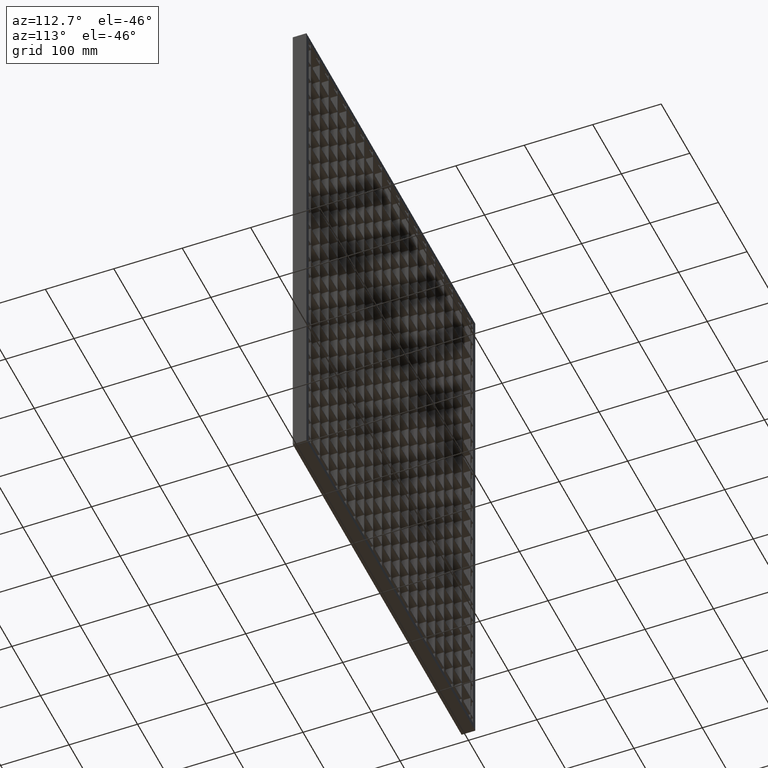
[diagram: clean part render]
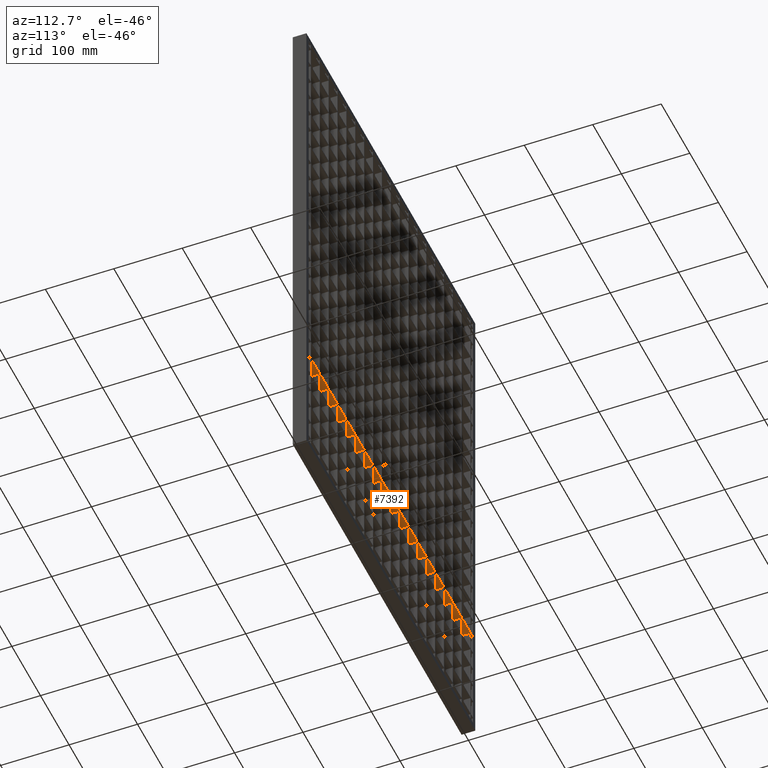
[diagram: same view with one face highlighted and labeled with its STEP entity id]
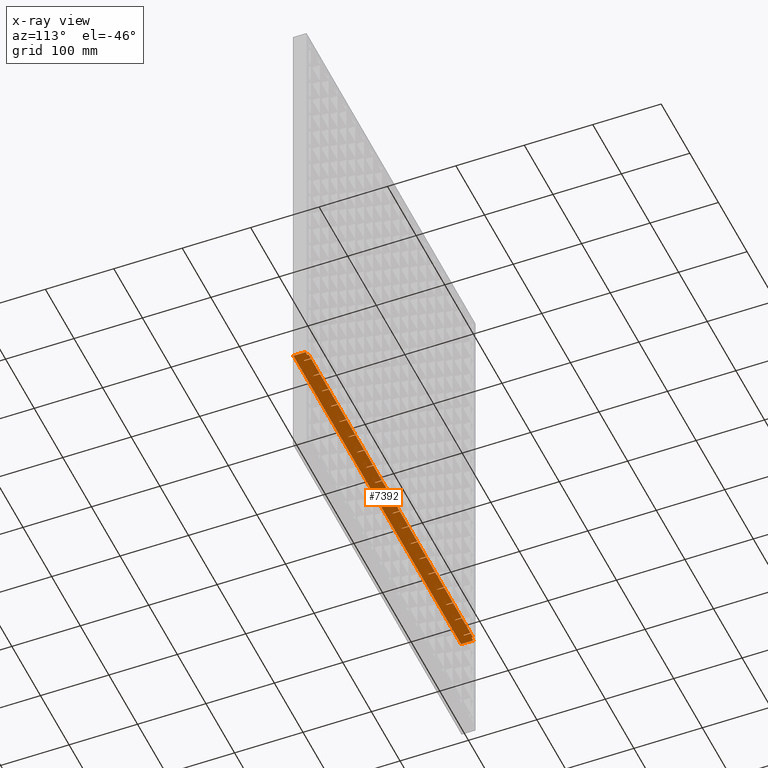
[diagram: x-ray of the same camera — body ghosted, the highlighted face saturated]
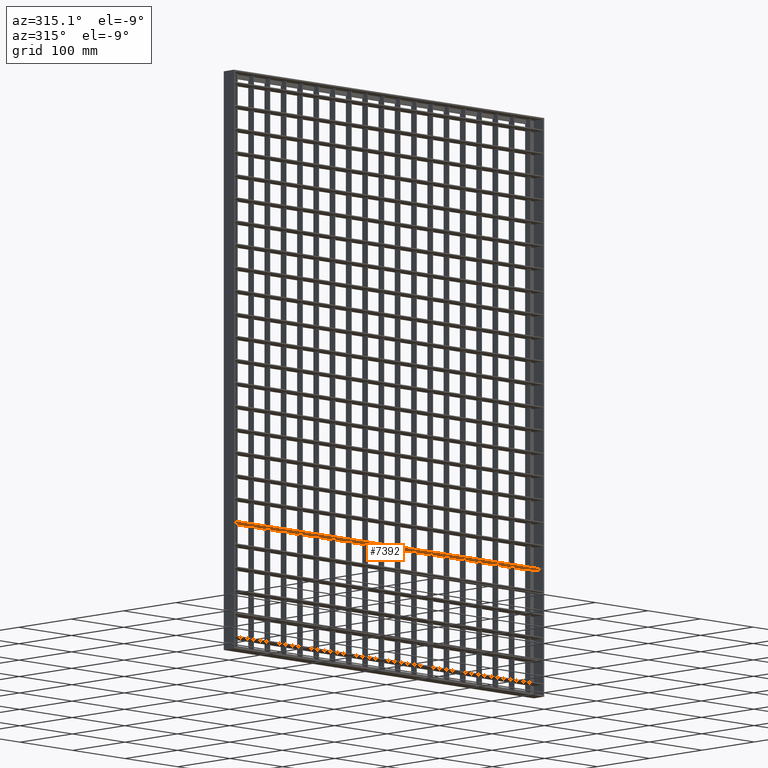
[diagram: same view with one face highlighted and labeled with its STEP entity id]
A machine part, auxiliary view. The second image highlights one B-rep face of the part: STEP entity #7392.
The next image is the same camera in x-ray: the body ghosted, the highlighted face saturated — about 0% of this face is hidden behind the body in this view.
A second angle (auxiliary view) of the same face is appended — the face is thin or edge-on in the first view.
In plain terms, the highlighted planar face has unit normal (0, 0, 1).
Its self-contained STEP definition (entity closure, byte-faithful):
#33 = CARTESIAN_POINT ( 'NONE',  ( 357.5000000000001100, 10.00000000000010800, -616.2499999999997700 ) ) ;
#61 = VECTOR ( 'NONE', #26564, 1000.000000000000000 ) ;
#147 = CARTESIAN_POINT ( 'NONE',  ( 449.5000000000000600, 1.734723475976807100E-015, -616.2499999999997700 ) ) ;
#302 = DIRECTION ( 'NONE',  ( -1.000000000000000000, 3.061616997868373300E-016, 0.0000000000000000000 ) ) ;
#349 = DIRECTION ( 'NONE',  ( -0.0000000000000000000, 1.000000000000000000, 0.0000000000000000000 ) ) ;
#484 = CARTESIAN_POINT ( 'NONE',  ( 608.0561711201313500, 10.00000000000018500, -616.2499999999997700 ) ) ;
#715 = LINE ( 'NONE', #11722, #40640 ) ;
#951 = EDGE_CURVE ( 'NONE', #69840, #65447, #59658, .T. ) ;
#1225 = DIRECTION ( 'NONE',  ( -1.000000000000000000, -3.061616997868382600E-016, 0.0000000000000000000 ) ) ;
#1245 = ORIENTED_EDGE ( 'NONE', *, *, #36718, .F. ) ;
#1247 = VECTOR ( 'NONE', #67531, 1000.000000000000000 ) ;
#1252 = ORIENTED_EDGE ( 'NONE', *, *, #54693, .T. ) ;
#1394 = CARTESIAN_POINT ( 'NONE',  ( 264.5000000000000600, -9.999999999999817000, -616.2499999999997700 ) ) ;
#1697 = EDGE_CURVE ( 'NONE', #32250, #66295, #41337, .T. ) ;
#1750 = ORIENTED_EDGE ( 'NONE', *, *, #2975, .F. ) ;
#1927 = CARTESIAN_POINT ( 'NONE',  ( 2.000000000000003600, -10.00000000000000000, -616.2499999999997700 ) ) ;
#2043 = LINE ( 'NONE', #67886, #39389 ) ;
#2047 = ORIENTED_EDGE ( 'NONE', *, *, #36748, .T. ) ;
#2148 = ORIENTED_EDGE ( 'NONE', *, *, #32944, .T. ) ;
#2220 = DIRECTION ( 'NONE',  ( 0.0000000000000000000, -1.000000000000000000, 0.0000000000000000000 ) ) ;
#2386 = DIRECTION ( 'NONE',  ( 0.0000000000000000000, -1.000000000000000000, 0.0000000000000000000 ) ) ;
#2623 = LINE ( 'NONE', #61043, #21786 ) ;
#2657 = LINE ( 'NONE', #38487, #33907 ) ;
#2776 = CARTESIAN_POINT ( 'NONE',  ( 512.5000000000000000, 1.500064159632394600E-015, -616.2499999999997700 ) ) ;
#2926 = VERTEX_POINT ( 'NONE', #34965 ) ;
#2975 = EDGE_CURVE ( 'NONE', #17500, #37077, #37606, .T. ) ;
#3007 = DIRECTION ( 'NONE',  ( -1.000000000000000000, -3.061616997868382600E-016, 0.0000000000000000000 ) ) ;
#3042 = AXIS2_PLACEMENT_3D ( 'NONE', #68817, #63729, #69800 ) ;
#3181 = ORIENTED_EDGE ( 'NONE', *, *, #39337, .T. ) ;
#3364 = DIRECTION ( 'NONE',  ( -0.0000000000000000000, 1.000000000000000000, 0.0000000000000000000 ) ) ;
#3549 = ORIENTED_EDGE ( 'NONE', *, *, #12016, .T. ) ;
#3605 = EDGE_CURVE ( 'NONE', #10358, #12796, #61807, .T. ) ;
#3643 = VERTEX_POINT ( 'NONE', #37120 ) ;
#3746 = DIRECTION ( 'NONE',  ( 0.0000000000000000000, -1.000000000000000000, 0.0000000000000000000 ) ) ;
#3793 = VERTEX_POINT ( 'NONE', #10458 ) ;
#4035 = LINE ( 'NONE', #15080, #5786 ) ;
#4244 = CARTESIAN_POINT ( 'NONE',  ( 588.0000000000001100, 8.000000000000001800, -616.2499999999997700 ) ) ;
#4441 = LINE ( 'NONE', #15582, #40949 ) ;
#4443 = LINE ( 'NONE', #67857, #22678 ) ;
#4629 = VECTOR ( 'NONE', #18399, 1000.000000000000000 ) ;
#4822 = CARTESIAN_POINT ( 'NONE',  ( 449.5000000000000600, 10.00000000000000200, -616.2499999999997700 ) ) ;
#4839 = VECTOR ( 'NONE', #14695, 1000.000000000000000 ) ;
#4855 = VERTEX_POINT ( 'NONE', #50580 ) ;
#5197 = EDGE_CURVE ( 'NONE', #54231, #19770, #63628, .T. ) ;
#5210 = ORIENTED_EDGE ( 'NONE', *, *, #12398, .F. ) ;
#5303 = LINE ( 'NONE', #10116, #61 ) ;
#5308 = ORIENTED_EDGE ( 'NONE', *, *, #35097, .T. ) ;
#5380 = ORIENTED_EDGE ( 'NONE', *, *, #3605, .T. ) ;
#5598 = VECTOR ( 'NONE', #18287, 1000.000000000000000 ) ;
#5786 = VECTOR ( 'NONE', #53833, 1000.000000000000000 ) ;
#5908 = CARTESIAN_POINT ( 'NONE',  ( 608.0561711201313500, -3.816391647148975600E-014, -616.2499999999997700 ) ) ;
#6029 = DIRECTION ( 'NONE',  ( -1.000000000000000000, -3.061616997868382600E-016, 0.0000000000000000000 ) ) ;
#6049 = VERTEX_POINT ( 'NONE', #40900 ) ;
#6370 = DIRECTION ( 'NONE',  ( -1.000000000000000000, -3.061616997868382600E-016, 0.0000000000000000000 ) ) ;
#6485 = LINE ( 'NONE', #69742, #14372 ) ;
#6623 = EDGE_CURVE ( 'NONE', #24511, #29935, #56868, .T. ) ;
#6627 = CARTESIAN_POINT ( 'NONE',  ( 608.0561711201313500, 10.00000000000018500, -616.2499999999997700 ) ) ;
#6719 = VECTOR ( 'NONE', #63049, 1000.000000000000000 ) ;
#6943 = EDGE_CURVE ( 'NONE', #6049, #63753, #43803, .T. ) ;
#7008 = CARTESIAN_POINT ( 'NONE',  ( 2.000000000000003600, 8.000000000000001800, -616.2499999999997700 ) ) ;
#7056 = EDGE_CURVE ( 'NONE', #61151, #26495, #61093, .T. ) ;
#7074 = CARTESIAN_POINT ( 'NONE',  ( 170.5000000000000300, 10.00000000000005000, -616.2499999999997700 ) ) ;
#7215 = ORIENTED_EDGE ( 'NONE', *, *, #6943, .F. ) ;
#7244 = VECTOR ( 'NONE', #56042, 1000.000000000000000 ) ;
#7392 = ADVANCED_FACE ( 'NONE', ( #16804 ), #30066, .F. ) ;
#7678 = EDGE_CURVE ( 'NONE', #46936, #37414, #9768, .T. ) ;
#8115 = CARTESIAN_POINT ( 'NONE',  ( 233.5000000000000300, 1.718540578710336300E-015, -616.2499999999997700 ) ) ;
#8291 = CARTESIAN_POINT ( 'NONE',  ( 140.5000000000000300, 10.00000000000000200, -616.2499999999997700 ) ) ;
#8310 = CARTESIAN_POINT ( 'NONE',  ( 608.0561711201313500, 10.00000000000018500, -616.2499999999997700 ) ) ;
#8327 = LINE ( 'NONE', #37732, #17041 ) ;
#8391 = EDGE_CURVE ( 'NONE', #16841, #40871, #4443, .T. ) ;
#8617 = DIRECTION ( 'NONE',  ( 0.0000000000000000000, -1.000000000000000000, 0.0000000000000000000 ) ) ;
#8745 = CARTESIAN_POINT ( 'NONE',  ( 46.50000000000004300, 1.412378878923498800E-015, -616.2499999999997700 ) ) ;
#8877 = CARTESIAN_POINT ( 'NONE',  ( 77.50000000000004300, 1.412378878923498800E-015, -616.2499999999997700 ) ) ;
#9363 = LINE ( 'NONE', #48176, #17173 ) ;
#9388 = LINE ( 'NONE', #1927, #63151 ) ;
#9428 = EDGE_CURVE ( 'NONE', #17520, #52066, #22553, .T. ) ;
#9537 = DIRECTION ( 'NONE',  ( -0.0000000000000000000, 1.000000000000000000, 0.0000000000000000000 ) ) ;
#9688 = VECTOR ( 'NONE', #25835, 1000.000000000000000 ) ;
#9712 = ORIENTED_EDGE ( 'NONE', *, *, #67018, .T. ) ;
#9764 = CARTESIAN_POINT ( 'NONE',  ( 481.5000000000000000, -9.999999999999817000, -616.2499999999997700 ) ) ;
#9768 = LINE ( 'NONE', #56329, #68741 ) ;
#9939 = CARTESIAN_POINT ( 'NONE',  ( 542.5000000000000000, 1.734723475976807100E-015, -616.2499999999997700 ) ) ;
#10116 = CARTESIAN_POINT ( 'NONE',  ( 582.0000000000000000, 8.000000000000001800, -616.2499999999997700 ) ) ;
#10130 = CARTESIAN_POINT ( 'NONE',  ( 294.5000000000000600, -9.999999999999817000, -616.2499999999997700 ) ) ;
#10180 = VERTEX_POINT ( 'NONE', #40971 ) ;
#10199 = VECTOR ( 'NONE', #55611, 1000.000000000000000 ) ;
#10219 = DIRECTION ( 'NONE',  ( -1.000000000000000000, 3.061616997868373300E-016, 0.0000000000000000000 ) ) ;
#10236 = ORIENTED_EDGE ( 'NONE', *, *, #47803, .F. ) ;
#10358 = VERTEX_POINT ( 'NONE', #49786 ) ;
#10458 = CARTESIAN_POINT ( 'NONE',  ( 16.50000000000001400, 10.00000000000000200, -616.2499999999997700 ) ) ;
#10481 = EDGE_CURVE ( 'NONE', #31335, #3643, #65757, .T. ) ;
#10652 = CARTESIAN_POINT ( 'NONE',  ( 357.5000000000001100, 2.117593775218354600E-015, -616.2499999999997700 ) ) ;
#10661 = VERTEX_POINT ( 'NONE', #51740 ) ;
#10939 = VERTEX_POINT ( 'NONE', #11725 ) ;
#11051 = CARTESIAN_POINT ( 'NONE',  ( 419.5000000000000000, 2.217526624179349000E-015, -616.2499999999997700 ) ) ;
#11095 = CARTESIAN_POINT ( 'NONE',  ( 608.0561711201313500, 10.00000000000018500, -616.2499999999997700 ) ) ;
#11112 = EDGE_CURVE ( 'NONE', #24511, #55812, #25561, .T. ) ;
#11193 = VECTOR ( 'NONE', #19302, 1000.000000000000000 ) ;
#11302 = CARTESIAN_POINT ( 'NONE',  ( 543.5000000000001100, 10.00000000000016500, -616.2499999999997700 ) ) ;
#11351 = ORIENTED_EDGE ( 'NONE', *, *, #11742, .F. ) ;
#11513 = CARTESIAN_POINT ( 'NONE',  ( 295.0000000000000600, 8.000000000000001800, -616.2499999999997700 ) ) ;
#11722 = CARTESIAN_POINT ( 'NONE',  ( 608.0561711201313500, 10.00000000000018500, -616.2499999999997700 ) ) ;
#11725 = CARTESIAN_POINT ( 'NONE',  ( 511.5000000000000600, 10.00000000000000200, -616.2499999999997700 ) ) ;
#11742 = EDGE_CURVE ( 'NONE', #49481, #45977, #59298, .T. ) ;
#11835 = VERTEX_POINT ( 'NONE', #69303 ) ;
#11973 = LINE ( 'NONE', #24237, #6719 ) ;
#12007 = VERTEX_POINT ( 'NONE', #43131 ) ;
#12016 = EDGE_CURVE ( 'NONE', #13623, #38789, #47964, .T. ) ;
#12136 = ORIENTED_EDGE ( 'NONE', *, *, #70786, .F. ) ;
#12203 = CARTESIAN_POINT ( 'NONE',  ( 2.000000000000001800, -10.00000000000000200, -616.2499999999997700 ) ) ;
#12321 = VECTOR ( 'NONE', #38179, 1000.000000000000000 ) ;
#12398 = EDGE_CURVE ( 'NONE', #58415, #32125, #69605, .T. ) ;
#12425 = LINE ( 'NONE', #6627, #50565 ) ;
#12708 = CARTESIAN_POINT ( 'NONE',  ( 139.5000000000000600, -9.999999999999817000, -616.2499999999997700 ) ) ;
#12796 = VERTEX_POINT ( 'NONE', #17007 ) ;
#12930 = CARTESIAN_POINT ( 'NONE',  ( 608.0561711201313500, 10.00000000000018500, -616.2499999999997700 ) ) ;
#12988 = CARTESIAN_POINT ( 'NONE',  ( 46.50000000000009900, 10.00000000000001200, -616.2499999999997700 ) ) ;
#13207 = VECTOR ( 'NONE', #20745, 1000.000000000000000 ) ;
#13210 = CARTESIAN_POINT ( 'NONE',  ( 450.5000000000000600, 10.00000000000013500, -616.2499999999997700 ) ) ;
#13233 = CARTESIAN_POINT ( 'NONE',  ( 47.50000000000004300, 10.00000000000000200, -616.2499999999997700 ) ) ;
#13518 = DIRECTION ( 'NONE',  ( -0.0000000000000000000, 1.000000000000000000, 0.0000000000000000000 ) ) ;
#13571 = LINE ( 'NONE', #58231, #53470 ) ;
#13623 = VERTEX_POINT ( 'NONE', #46071 ) ;
#13699 = VECTOR ( 'NONE', #2386, 1000.000000000000000 ) ;
#13924 = VERTEX_POINT ( 'NONE', #47968 ) ;
#13991 = ORIENTED_EDGE ( 'NONE', *, *, #27981, .F. ) ;
#14258 = CARTESIAN_POINT ( 'NONE',  ( 47.50000000000004300, 1.718540578710336300E-015, -616.2499999999997700 ) ) ;
#14328 = LINE ( 'NONE', #28960, #5598 ) ;
#14372 = VECTOR ( 'NONE', #52266, 1000.000000000000000 ) ;
#14605 = VECTOR ( 'NONE', #63071, 1000.000000000000000 ) ;
#14638 = VECTOR ( 'NONE', #51977, 1000.000000000000000 ) ;
#14695 = DIRECTION ( 'NONE',  ( 0.0000000000000000000, -1.000000000000000000, 0.0000000000000000000 ) ) ;
#14715 = VERTEX_POINT ( 'NONE', #12988 ) ;
#14931 = CARTESIAN_POINT ( 'NONE',  ( 588.0000000000000000, -9.999999999999817000, -616.2499999999997700 ) ) ;
#14975 = DIRECTION ( 'NONE',  ( -0.0000000000000000000, 1.000000000000000000, 0.0000000000000000000 ) ) ;
#15080 = CARTESIAN_POINT ( 'NONE',  ( 608.0561711201313500, 10.00000000000018500, -616.2499999999997700 ) ) ;
#15184 = CARTESIAN_POINT ( 'NONE',  ( 608.0561711201313500, 1.457167719820518000E-013, -616.2499999999997700 ) ) ;
#15187 = DIRECTION ( 'NONE',  ( -0.0000000000000000000, 1.000000000000000000, 0.0000000000000000000 ) ) ;
#15267 = VECTOR ( 'NONE', #3364, 1000.000000000000000 ) ;
#15439 = EDGE_CURVE ( 'NONE', #65447, #36996, #40564, .T. ) ;
#15455 = EDGE_CURVE ( 'NONE', #56479, #34657, #11973, .T. ) ;
#15477 = DIRECTION ( 'NONE',  ( 1.000000000000000000, 3.061616997868373300E-016, -0.0000000000000000000 ) ) ;
#15528 = CARTESIAN_POINT ( 'NONE',  ( 357.5000000000001100, -9.999999999999817000, -616.2499999999997700 ) ) ;
#15582 = CARTESIAN_POINT ( 'NONE',  ( 608.0561711201313500, 1.630640067418198700E-013, -616.2499999999997700 ) ) ;
#15614 = DIRECTION ( 'NONE',  ( 0.0000000000000000000, -1.000000000000000000, 0.0000000000000000000 ) ) ;
#15862 = EDGE_CURVE ( 'NONE', #47526, #32250, #13571, .T. ) ;
#15958 = ORIENTED_EDGE ( 'NONE', *, *, #62601, .F. ) ;
#16107 = ORIENTED_EDGE ( 'NONE', *, *, #42738, .F. ) ;
#16376 = LINE ( 'NONE', #49480, #58011 ) ;
#16504 = EDGE_CURVE ( 'NONE', #12007, #13924, #37037, .T. ) ;
#16541 = ORIENTED_EDGE ( 'NONE', *, *, #68631, .T. ) ;
#16576 = VECTOR ( 'NONE', #34663, 1000.000000000000000 ) ;
#16699 = ORIENTED_EDGE ( 'NONE', *, *, #47340, .F. ) ;
#16774 = ORIENTED_EDGE ( 'NONE', *, *, #59145, .F. ) ;
#16804 = FACE_OUTER_BOUND ( 'NONE', #67920, .T. ) ;
#16822 = VERTEX_POINT ( 'NONE', #32916 ) ;
#16837 = ORIENTED_EDGE ( 'NONE', *, *, #15439, .F. ) ;
#16841 = VERTEX_POINT ( 'NONE', #66132 ) ;
#16884 = VECTOR ( 'NONE', #49005, 1000.000000000000000 ) ;
#17007 = CARTESIAN_POINT ( 'NONE',  ( 109.5000000000000400, 1.718540578710336300E-015, -616.2499999999997700 ) ) ;
#17041 = VECTOR ( 'NONE', #54669, 1000.000000000000000 ) ;
#17173 = VECTOR ( 'NONE', #48884, 1000.000000000000000 ) ;
#17194 = CARTESIAN_POINT ( 'NONE',  ( 294.5000000000000600, 1.412378878923498800E-015, -616.2499999999997700 ) ) ;
#17242 = LINE ( 'NONE', #10130, #11193 ) ;
#17500 = VERTEX_POINT ( 'NONE', #20699 ) ;
#17520 = VERTEX_POINT ( 'NONE', #11051 ) ;
#17535 = LINE ( 'NONE', #14931, #12321 ) ;
#17597 = DIRECTION ( 'NONE',  ( -1.000000000000000000, -3.061616997868382600E-016, 0.0000000000000000000 ) ) ;
#17603 = VECTOR ( 'NONE', #37146, 1000.000000000000000 ) ;
#17952 = EDGE_CURVE ( 'NONE', #36102, #27076, #49047, .T. ) ;
#18287 = DIRECTION ( 'NONE',  ( -0.0000000000000000000, 1.000000000000000000, 0.0000000000000000000 ) ) ;
#18290 = CARTESIAN_POINT ( 'NONE',  ( 608.0561711201313500, 10.00000000000018500, -616.2499999999997700 ) ) ;
#18399 = DIRECTION ( 'NONE',  ( -0.0000000000000000000, 1.000000000000000000, 0.0000000000000000000 ) ) ;
#18631 = VERTEX_POINT ( 'NONE', #37309 ) ;
#18764 = CARTESIAN_POINT ( 'NONE',  ( 326.5000000000000600, 10.00000000000009800, -616.2499999999997700 ) ) ;
#18805 = CARTESIAN_POINT ( 'NONE',  ( 325.5000000000000600, 10.00000000000000200, -616.2499999999997700 ) ) ;
#18827 = EDGE_CURVE ( 'NONE', #31718, #61705, #51452, .T. ) ;
#19027 = EDGE_CURVE ( 'NONE', #68417, #20552, #63574, .T. ) ;
#19166 = EDGE_CURVE ( 'NONE', #59104, #52917, #43603, .T. ) ;
#19197 = ORIENTED_EDGE ( 'NONE', *, *, #64051, .T. ) ;
#19302 = DIRECTION ( 'NONE',  ( 0.0000000000000000000, -1.000000000000000000, 0.0000000000000000000 ) ) ;
#19351 = EDGE_CURVE ( 'NONE', #46911, #36102, #45351, .T. ) ;
#19770 = VERTEX_POINT ( 'NONE', #8291 ) ;
#19911 = DIRECTION ( 'NONE',  ( 1.000000000000000000, 3.061616997868373300E-016, -0.0000000000000000000 ) ) ;
#20042 = CARTESIAN_POINT ( 'NONE',  ( 295.5000000000000600, -9.999999999999817000, -616.2499999999997700 ) ) ;
#20207 = ORIENTED_EDGE ( 'NONE', *, *, #7056, .F. ) ;
#20269 = CARTESIAN_POINT ( 'NONE',  ( 418.5000000000000600, 1.734723475976807100E-015, -616.2499999999997700 ) ) ;
#20377 = CARTESIAN_POINT ( 'NONE',  ( 608.0561711201313500, 1.543903893619358300E-013, -616.2499999999997700 ) ) ;
#20389 = VECTOR ( 'NONE', #17597, 1000.000000000000000 ) ;
#20410 = CARTESIAN_POINT ( 'NONE',  ( 608.0561711201313500, 10.00000000000018500, -616.2499999999997700 ) ) ;
#20552 = VERTEX_POINT ( 'NONE', #32865 ) ;
#20582 = VECTOR ( 'NONE', #15614, 1000.000000000000000 ) ;
#20699 = CARTESIAN_POINT ( 'NONE',  ( 481.5000000000000000, 10.00000000000014600, -616.2499999999997700 ) ) ;
#20745 = DIRECTION ( 'NONE',  ( -0.0000000000000000000, 1.000000000000000000, 0.0000000000000000000 ) ) ;
#20969 = CARTESIAN_POINT ( 'NONE',  ( 480.5000000000000000, 10.00000000000000200, -616.2499999999997700 ) ) ;
#21181 = LINE ( 'NONE', #67652, #7244 ) ;
#21250 = VERTEX_POINT ( 'NONE', #49983 ) ;
#21518 = ORIENTED_EDGE ( 'NONE', *, *, #49256, .F. ) ;
#21672 = DIRECTION ( 'NONE',  ( -1.000000000000000000, 0.0000000000000000000, 0.0000000000000000000 ) ) ;
#21786 = VECTOR ( 'NONE', #65910, 1000.000000000000000 ) ;
#21927 = LINE ( 'NONE', #20042, #29740 ) ;
#22159 = ORIENTED_EDGE ( 'NONE', *, *, #39908, .F. ) ;
#22197 = DIRECTION ( 'NONE',  ( -0.0000000000000000000, 1.000000000000000000, 0.0000000000000000000 ) ) ;
#22311 = ORIENTED_EDGE ( 'NONE', *, *, #29781, .T. ) ;
#22423 = CARTESIAN_POINT ( 'NONE',  ( 608.0561711201313500, 10.00000000000018500, -616.2499999999997700 ) ) ;
#22534 = CARTESIAN_POINT ( 'NONE',  ( 264.5000000000000600, 1.718540578710336300E-015, -616.2499999999997700 ) ) ;
#22553 = LINE ( 'NONE', #60938, #65983 ) ;
#22554 = CARTESIAN_POINT ( 'NONE',  ( 232.5000000000000300, -9.999999999999817000, -616.2499999999997700 ) ) ;
#22678 = VECTOR ( 'NONE', #28847, 1000.000000000000000 ) ;
#22719 = VECTOR ( 'NONE', #349, 1000.000000000000000 ) ;
#22837 = VECTOR ( 'NONE', #8617, 1000.000000000000000 ) ;
#22868 = CARTESIAN_POINT ( 'NONE',  ( 608.0561711201313500, -2.775557561562891400E-014, -616.2499999999997700 ) ) ;
#22943 = LINE ( 'NONE', #38339, #61971 ) ;
#23008 = VERTEX_POINT ( 'NONE', #18805 ) ;
#23037 = VERTEX_POINT ( 'NONE', #13233 ) ;
#23248 = ORIENTED_EDGE ( 'NONE', *, *, #27640, .F. ) ;
#23278 = ORIENTED_EDGE ( 'NONE', *, *, #19351, .T. ) ;
#23295 = EDGE_CURVE ( 'NONE', #18631, #47995, #45025, .T. ) ;
#23328 = DIRECTION ( 'NONE',  ( 0.0000000000000000000, -1.000000000000000000, 0.0000000000000000000 ) ) ;
#23403 = VECTOR ( 'NONE', #9537, 1000.000000000000000 ) ;
#23436 = LINE ( 'NONE', #57382, #51189 ) ;
#23442 = EDGE_CURVE ( 'NONE', #10939, #17500, #24113, .T. ) ;
#23532 = EDGE_CURVE ( 'NONE', #58084, #37414, #9388, .T. ) ;
#23943 = LINE ( 'NONE', #43677, #39635 ) ;
#24113 = LINE ( 'NONE', #67677, #14605 ) ;
#24146 = CARTESIAN_POINT ( 'NONE',  ( 232.4999999999999700, 10.00000000000006900, -616.2499999999997700 ) ) ;
#24237 = CARTESIAN_POINT ( 'NONE',  ( 608.0561711201313500, 1.353084311261909500E-013, -616.2499999999997700 ) ) ;
#24369 = CARTESIAN_POINT ( 'NONE',  ( 232.5000000000000300, 1.412378878923498800E-015, -616.2499999999997700 ) ) ;
#24511 = VERTEX_POINT ( 'NONE', #61377 ) ;
#24638 = CARTESIAN_POINT ( 'NONE',  ( 7.999999999999996400, 8.000000000000001800, -616.2499999999997700 ) ) ;
#25240 = VERTEX_POINT ( 'NONE', #2776 ) ;
#25255 = LINE ( 'NONE', #50926, #16576 ) ;
#25335 = VECTOR ( 'NONE', #34864, 1000.000000000000000 ) ;
#25363 = CARTESIAN_POINT ( 'NONE',  ( 356.5000000000001100, 1.734723475976807100E-015, -616.2499999999997700 ) ) ;
#25561 = LINE ( 'NONE', #12708, #39507 ) ;
#25772 = CARTESIAN_POINT ( 'NONE',  ( 387.5000000000000000, -9.999999999999817000, -616.2499999999997700 ) ) ;
#25801 = CARTESIAN_POINT ( 'NONE',  ( 543.5000000000001100, -9.999999999999817000, -616.2499999999997700 ) ) ;
#25835 = DIRECTION ( 'NONE',  ( 1.000000000000000000, 3.061616997868373300E-016, -0.0000000000000000000 ) ) ;
#26079 = EDGE_CURVE ( 'NONE', #58384, #34248, #56669, .T. ) ;
#26256 = VECTOR ( 'NONE', #3007, 1000.000000000000000 ) ;
#26495 = VERTEX_POINT ( 'NONE', #37249 ) ;
#26526 = EDGE_CURVE ( 'NONE', #64199, #68603, #21927, .T. ) ;
#26564 = DIRECTION ( 'NONE',  ( 0.0000000000000000000, 1.000000000000000000, -0.0000000000000000000 ) ) ;
#26637 = EDGE_CURVE ( 'NONE', #66295, #23008, #64373, .T. ) ;
#27018 = ORIENTED_EDGE ( 'NONE', *, *, #58871, .T. ) ;
#27049 = DIRECTION ( 'NONE',  ( -1.000000000000000000, -3.061616997868382600E-016, 0.0000000000000000000 ) ) ;
#27076 = VERTEX_POINT ( 'NONE', #8115 ) ;
#27264 = LINE ( 'NONE', #38100, #47229 ) ;
#27367 = VECTOR ( 'NONE', #50771, 1000.000000000000000 ) ;
#27640 = EDGE_CURVE ( 'NONE', #14715, #3793, #715, .T. ) ;
#27703 = VECTOR ( 'NONE', #71105, 1000.000000000000000 ) ;
#27721 = EDGE_CURVE ( 'NONE', #46911, #4855, #68963, .T. ) ;
#27981 = EDGE_CURVE ( 'NONE', #45977, #32565, #34239, .T. ) ;
#28414 = VECTOR ( 'NONE', #44243, 1000.000000000000000 ) ;
#28847 = DIRECTION ( 'NONE',  ( -1.000000000000000000, 3.061616997868373300E-016, 0.0000000000000000000 ) ) ;
#28854 = VECTOR ( 'NONE', #62534, 1000.000000000000000 ) ;
#28960 = CARTESIAN_POINT ( 'NONE',  ( 449.5000000000000600, -9.999999999999817000, -616.2499999999997700 ) ) ;
#29050 = VERTEX_POINT ( 'NONE', #63565 ) ;
#29326 = VECTOR ( 'NONE', #66269, 1000.000000000000000 ) ;
#29740 = VECTOR ( 'NONE', #14975, 1000.000000000000000 ) ;
#29781 = EDGE_CURVE ( 'NONE', #27076, #61705, #2657, .T. ) ;
#29935 = VERTEX_POINT ( 'NONE', #71962 ) ;
#29960 = LINE ( 'NONE', #50529, #20389 ) ;
#30034 = LINE ( 'NONE', #48375, #44793 ) ;
#30066 = PLANE ( 'NONE',  #3042 ) ;
#30088 = CARTESIAN_POINT ( 'NONE',  ( 450.5000000000000600, -9.999999999999817000, -616.2499999999997700 ) ) ;
#30688 = CARTESIAN_POINT ( 'NONE',  ( 608.0561711201313500, 10.00000000000018500, -616.2499999999997700 ) ) ;
#30821 = DIRECTION ( 'NONE',  ( 0.0000000000000000000, -1.000000000000000000, 0.0000000000000000000 ) ) ;
#30874 = CARTESIAN_POINT ( 'NONE',  ( 608.0561711201313500, 10.00000000000018500, -616.2499999999997700 ) ) ;
#31335 = VERTEX_POINT ( 'NONE', #37433 ) ;
#31718 = VERTEX_POINT ( 'NONE', #46384 ) ;
#31951 = VECTOR ( 'NONE', #3746, 1000.000000000000000 ) ;
#32125 = VERTEX_POINT ( 'NONE', #45131 ) ;
#32250 = VERTEX_POINT ( 'NONE', #51137 ) ;
#32430 = EDGE_CURVE ( 'NONE', #16822, #10939, #58584, .T. ) ;
#32450 = VERTEX_POINT ( 'NONE', #48231 ) ;
#32557 = VECTOR ( 'NONE', #35316, 1000.000000000000000 ) ;
#32565 = VERTEX_POINT ( 'NONE', #10652 ) ;
#32644 = VERTEX_POINT ( 'NONE', #9939 ) ;
#32686 = ORIENTED_EDGE ( 'NONE', *, *, #60756, .F. ) ;
#32865 = CARTESIAN_POINT ( 'NONE',  ( 7.999999999999996400, 8.000000000000001800, -616.2499999999997700 ) ) ;
#32916 = CARTESIAN_POINT ( 'NONE',  ( 511.5000000000000600, 1.734723475976807100E-015, -616.2499999999997700 ) ) ;
#32944 = EDGE_CURVE ( 'NONE', #12796, #29935, #6485, .T. ) ;
#33020 = DIRECTION ( 'NONE',  ( 1.000000000000000000, 3.061616997868373300E-016, -0.0000000000000000000 ) ) ;
#33193 = ORIENTED_EDGE ( 'NONE', *, *, #60995, .F. ) ;
#33293 = ORIENTED_EDGE ( 'NONE', *, *, #17952, .T. ) ;
#33377 = DIRECTION ( 'NONE',  ( 1.000000000000000000, 3.061616997868373300E-016, -0.0000000000000000000 ) ) ;
#33907 = VECTOR ( 'NONE', #54968, 1000.000000000000000 ) ;
#33998 = CARTESIAN_POINT ( 'NONE',  ( 608.0561711201313500, 10.00000000000018500, -616.2499999999997700 ) ) ;
#34239 = LINE ( 'NONE', #15528, #47247 ) ;
#34248 = VERTEX_POINT ( 'NONE', #36263 ) ;
#34530 = VECTOR ( 'NONE', #22197, 1000.000000000000000 ) ;
#34657 = VERTEX_POINT ( 'NONE', #50358 ) ;
#34663 = DIRECTION ( 'NONE',  ( 0.0000000000000000000, -1.000000000000000000, 0.0000000000000000000 ) ) ;
#34664 = DIRECTION ( 'NONE',  ( -0.0000000000000000000, 1.000000000000000000, 0.0000000000000000000 ) ) ;
#34864 = DIRECTION ( 'NONE',  ( -1.000000000000000000, 0.0000000000000000000, 0.0000000000000000000 ) ) ;
#34914 = VECTOR ( 'NONE', #49737, 1000.000000000000000 ) ;
#34917 = ORIENTED_EDGE ( 'NONE', *, *, #47411, .F. ) ;
#34965 = CARTESIAN_POINT ( 'NONE',  ( 15.50000000000001400, 1.412378878923498800E-015, -616.2499999999997700 ) ) ;
#34992 = VERTEX_POINT ( 'NONE', #57857 ) ;
#35030 = VECTOR ( 'NONE', #54433, 1000.000000000000000 ) ;
#35074 = DIRECTION ( 'NONE',  ( -0.0000000000000000000, -1.000000000000000000, 0.0000000000000000000 ) ) ;
#35097 = EDGE_CURVE ( 'NONE', #55812, #29050, #39185, .T. ) ;
#35316 = DIRECTION ( 'NONE',  ( -1.000000000000000000, 3.061616997868373300E-016, 0.0000000000000000000 ) ) ;
#35389 = EDGE_CURVE ( 'NONE', #14715, #42206, #25255, .T. ) ;
#35737 = ORIENTED_EDGE ( 'NONE', *, *, #57032, .F. ) ;
#35871 = ORIENTED_EDGE ( 'NONE', *, *, #71905, .F. ) ;
#36069 = VECTOR ( 'NONE', #13518, 1000.000000000000000 ) ;
#36102 = VERTEX_POINT ( 'NONE', #24369 ) ;
#36262 = LINE ( 'NONE', #49603, #34530 ) ;
#36263 = CARTESIAN_POINT ( 'NONE',  ( 543.5000000000001100, 6.826688461244297300E-016, -616.2499999999997700 ) ) ;
#36402 = DIRECTION ( 'NONE',  ( -1.000000000000000000, -3.061616997868382600E-016, 0.0000000000000000000 ) ) ;
#36718 = EDGE_CURVE ( 'NONE', #40871, #49481, #48507, .T. ) ;
#36748 = EDGE_CURVE ( 'NONE', #34657, #52917, #71993, .T. ) ;
#36771 = LINE ( 'NONE', #59758, #35030 ) ;
#36902 = LINE ( 'NONE', #46706, #36069 ) ;
#36991 = ORIENTED_EDGE ( 'NONE', *, *, #19166, .F. ) ;
#36996 = VERTEX_POINT ( 'NONE', #50442 ) ;
#37037 = LINE ( 'NONE', #484, #67315 ) ;
#37077 = VERTEX_POINT ( 'NONE', #44923 ) ;
#37120 = CARTESIAN_POINT ( 'NONE',  ( 388.5000000000000000, 10.00000000000011700, -616.2499999999997700 ) ) ;
#37146 = DIRECTION ( 'NONE',  ( -1.000000000000000000, -3.061616997868382600E-016, 0.0000000000000000000 ) ) ;
#37249 = CARTESIAN_POINT ( 'NONE',  ( 356.5000000000001100, 10.00000000000000200, -616.2499999999997700 ) ) ;
#37309 = CARTESIAN_POINT ( 'NONE',  ( 263.5000000000000600, 1.412378878923498800E-015, -616.2499999999997700 ) ) ;
#37381 = CARTESIAN_POINT ( 'NONE',  ( 573.5000000000001100, 1.734723475976807100E-015, -616.2499999999997700 ) ) ;
#37414 = VERTEX_POINT ( 'NONE', #12203 ) ;
#37433 = CARTESIAN_POINT ( 'NONE',  ( 418.5000000000000600, 10.00000000000000200, -616.2499999999997700 ) ) ;
#37497 = CARTESIAN_POINT ( 'NONE',  ( 608.0561711201313500, 1.266348137463069200E-013, -616.2499999999997700 ) ) ;
#37606 = LINE ( 'NONE', #9764, #61059 ) ;
#37728 = ORIENTED_EDGE ( 'NONE', *, *, #5197, .F. ) ;
#37732 = CARTESIAN_POINT ( 'NONE',  ( 201.5000000000000000, -9.999999999999817000, -616.2499999999997700 ) ) ;
#37815 = CARTESIAN_POINT ( 'NONE',  ( 608.0561711201313500, 1.821459649775647400E-013, -616.2499999999997700 ) ) ;
#38100 = CARTESIAN_POINT ( 'NONE',  ( 108.5000000000000400, -9.999999999999817000, -616.2499999999997700 ) ) ;
#38105 = CARTESIAN_POINT ( 'NONE',  ( 171.5000000000000300, 10.00000000000000200, -616.2499999999997700 ) ) ;
#38179 = DIRECTION ( 'NONE',  ( 0.0000000000000000000, -1.000000000000000000, 0.0000000000000000000 ) ) ;
#38339 = CARTESIAN_POINT ( 'NONE',  ( 608.0561711201313500, -1.908195823574487800E-014, -616.2499999999997700 ) ) ;
#38341 = ORIENTED_EDGE ( 'NONE', *, *, #65015, .F. ) ;
#38414 = ORIENTED_EDGE ( 'NONE', *, *, #46699, .F. ) ;
#38487 = CARTESIAN_POINT ( 'NONE',  ( 233.5000000000000300, -9.999999999999817000, -616.2499999999997700 ) ) ;
#38593 = CARTESIAN_POINT ( 'NONE',  ( 170.5000000000000300, -9.999999999999817000, -616.2499999999997700 ) ) ;
#38622 = VECTOR ( 'NONE', #41313, 1000.000000000000000 ) ;
#38755 = LINE ( 'NONE', #41727, #44819 ) ;
#38789 = VERTEX_POINT ( 'NONE', #45003 ) ;
#38792 = CARTESIAN_POINT ( 'NONE',  ( 608.0561711201313500, 10.00000000000018500, -616.2499999999997700 ) ) ;
#38927 = LINE ( 'NONE', #60904, #20582 ) ;
#39059 = ORIENTED_EDGE ( 'NONE', *, *, #26079, .F. ) ;
#39185 = LINE ( 'NONE', #15184, #9688 ) ;
#39337 = EDGE_CURVE ( 'NONE', #54231, #56479, #64423, .T. ) ;
#39389 = VECTOR ( 'NONE', #34664, 1000.000000000000000 ) ;
#39472 = CARTESIAN_POINT ( 'NONE',  ( 608.0561711201313500, 1.734723475976807100E-013, -616.2499999999997700 ) ) ;
#39507 = VECTOR ( 'NONE', #23328, 1000.000000000000000 ) ;
#39635 = VECTOR ( 'NONE', #67407, 1000.000000000000000 ) ;
#39872 = DIRECTION ( 'NONE',  ( -1.000000000000000000, -3.061616997868382600E-016, 0.0000000000000000000 ) ) ;
#39908 = EDGE_CURVE ( 'NONE', #61249, #44879, #65141, .T. ) ;
#40564 = LINE ( 'NONE', #30088, #13699 ) ;
#40640 = VECTOR ( 'NONE', #1225, 1000.000000000000000 ) ;
#40786 = DIRECTION ( 'NONE',  ( -0.0000000000000000000, -1.000000000000000000, 0.0000000000000000000 ) ) ;
#40842 = CARTESIAN_POINT ( 'NONE',  ( 78.50000000000004300, 10.00000000000000200, -616.2499999999997700 ) ) ;
#40871 = VERTEX_POINT ( 'NONE', #50962 ) ;
#40900 = CARTESIAN_POINT ( 'NONE',  ( 108.4999999999999900, 10.00000000000003200, -616.2499999999997700 ) ) ;
#40949 = VECTOR ( 'NONE', #70620, 1000.000000000000000 ) ;
#40971 = CARTESIAN_POINT ( 'NONE',  ( 15.50000000000006900, 10.00000000000000200, -616.2499999999997700 ) ) ;
#41265 = ORIENTED_EDGE ( 'NONE', *, *, #32430, .F. ) ;
#41280 = ORIENTED_EDGE ( 'NONE', *, *, #23295, .T. ) ;
#41313 = DIRECTION ( 'NONE',  ( 1.000000000000000000, 3.061616997868373300E-016, -0.0000000000000000000 ) ) ;
#41337 = LINE ( 'NONE', #60615, #50840 ) ;
#41504 = LINE ( 'NONE', #58797, #31951 ) ;
#41717 = DIRECTION ( 'NONE',  ( -0.0000000000000000000, 1.000000000000000000, 0.0000000000000000000 ) ) ;
#41727 = CARTESIAN_POINT ( 'NONE',  ( 15.50000000000006900, -9.999999999999817000, -616.2499999999997700 ) ) ;
#41796 = ORIENTED_EDGE ( 'NONE', *, *, #15455, .T. ) ;
#41937 = VECTOR ( 'NONE', #15477, 1000.000000000000000 ) ;
#41999 = DIRECTION ( 'NONE',  ( -1.000000000000000000, -3.061616997868382600E-016, 0.0000000000000000000 ) ) ;
#42206 = VERTEX_POINT ( 'NONE', #8745 ) ;
#42221 = EDGE_CURVE ( 'NONE', #10180, #2926, #38755, .T. ) ;
#42338 = LINE ( 'NONE', #22868, #28414 ) ;
#42738 = EDGE_CURVE ( 'NONE', #54952, #67482, #57727, .T. ) ;
#42895 = LINE ( 'NONE', #22423, #1247 ) ;
#43109 = CARTESIAN_POINT ( 'NONE',  ( 295.5000000000000600, 10.00000000000000200, -616.2499999999997700 ) ) ;
#43131 = CARTESIAN_POINT ( 'NONE',  ( 542.5000000000000000, 10.00000000000000200, -616.2499999999997700 ) ) ;
#43212 = VECTOR ( 'NONE', #27049, 1000.000000000000000 ) ;
#43251 = ORIENTED_EDGE ( 'NONE', *, *, #1697, .F. ) ;
#43456 = DIRECTION ( 'NONE',  ( 0.0000000000000000000, -1.000000000000000000, 0.0000000000000000000 ) ) ;
#43603 = LINE ( 'NONE', #20410, #17603 ) ;
#43677 = CARTESIAN_POINT ( 'NONE',  ( 608.0561711201313500, 10.00000000000018500, -616.2499999999997700 ) ) ;
#43687 = EDGE_CURVE ( 'NONE', #47995, #21250, #49730, .T. ) ;
#43803 = LINE ( 'NONE', #30874, #48085 ) ;
#43864 = CARTESIAN_POINT ( 'NONE',  ( 480.5000000000000000, 1.734723475976807100E-015, -616.2499999999997700 ) ) ;
#43891 = CARTESIAN_POINT ( 'NONE',  ( 139.5000000000000300, 1.412378878923498800E-015, -616.2499999999997700 ) ) ;
#43909 = LINE ( 'NONE', #69984, #4839 ) ;
#43957 = ORIENTED_EDGE ( 'NONE', *, *, #62334, .F. ) ;
#44179 = DIRECTION ( 'NONE',  ( -1.000000000000000000, 3.061616997868373300E-016, 0.0000000000000000000 ) ) ;
#44211 = EDGE_CURVE ( 'NONE', #32644, #12007, #65224, .T. ) ;
#44243 = DIRECTION ( 'NONE',  ( -1.000000000000000000, 3.061616997868373300E-016, 0.0000000000000000000 ) ) ;
#44521 = CARTESIAN_POINT ( 'NONE',  ( 387.5000000000000000, 10.00000000000000200, -616.2499999999997700 ) ) ;
#44522 = CARTESIAN_POINT ( 'NONE',  ( 542.5000000000000000, -9.999999999999817000, -616.2499999999997700 ) ) ;
#44586 = VECTOR ( 'NONE', #6029, 1000.000000000000000 ) ;
#44771 = EDGE_CURVE ( 'NONE', #26495, #47526, #12425, .T. ) ;
#44780 = ORIENTED_EDGE ( 'NONE', *, *, #68676, .F. ) ;
#44793 = VECTOR ( 'NONE', #15187, 1000.000000000000000 ) ;
#44819 = VECTOR ( 'NONE', #30821, 1000.000000000000000 ) ;
#44879 = VERTEX_POINT ( 'NONE', #62118 ) ;
#44923 = CARTESIAN_POINT ( 'NONE',  ( 481.4999999999999400, 5.827359971635182900E-016, -616.2499999999997700 ) ) ;
#44963 = ORIENTED_EDGE ( 'NONE', *, *, #43687, .T. ) ;
#45003 = CARTESIAN_POINT ( 'NONE',  ( 202.5000000000000300, 1.718540578710336300E-015, -616.2499999999997700 ) ) ;
#45025 = LINE ( 'NONE', #60184, #51917 ) ;
#45131 = CARTESIAN_POINT ( 'NONE',  ( 574.5000000000000000, 10.00000000000017400, -616.2499999999997700 ) ) ;
#45351 = LINE ( 'NONE', #22554, #28854 ) ;
#45561 = CARTESIAN_POINT ( 'NONE',  ( 574.5000000000000000, 1.599997008593341400E-015, -616.2499999999997700 ) ) ;
#45848 = CARTESIAN_POINT ( 'NONE',  ( 295.5000000000000600, 1.718540578710336300E-015, -616.2499999999997700 ) ) ;
#45879 = DIRECTION ( 'NONE',  ( -1.000000000000000000, -3.061616997868382600E-016, 0.0000000000000000000 ) ) ;
#45977 = VERTEX_POINT ( 'NONE', #33 ) ;
#46005 = CARTESIAN_POINT ( 'NONE',  ( 419.5000000000000600, -9.999999999999817000, -616.2499999999997700 ) ) ;
#46069 = VERTEX_POINT ( 'NONE', #51184 ) ;
#46071 = CARTESIAN_POINT ( 'NONE',  ( 201.5000000000000300, 1.412378878923498800E-015, -616.2499999999997700 ) ) ;
#46237 = CARTESIAN_POINT ( 'NONE',  ( 78.50000000000004300, 1.718540578710336300E-015, -616.2499999999997700 ) ) ;
#46344 = VECTOR ( 'NONE', #71524, 1000.000000000000000 ) ;
#46384 = CARTESIAN_POINT ( 'NONE',  ( 263.5000000000000600, 10.00000000000007800, -616.2499999999997700 ) ) ;
#46416 = ORIENTED_EDGE ( 'NONE', *, *, #68723, .T. ) ;
#46673 = CARTESIAN_POINT ( 'NONE',  ( 608.0561711201313500, 10.00000000000018500, -616.2499999999997700 ) ) ;
#46699 = EDGE_CURVE ( 'NONE', #36996, #59550, #16376, .T. ) ;
#46706 = CARTESIAN_POINT ( 'NONE',  ( 78.50000000000001400, -9.999999999999817000, -616.2499999999997700 ) ) ;
#46911 = VERTEX_POINT ( 'NONE', #24146 ) ;
#46936 = VERTEX_POINT ( 'NONE', #68046 ) ;
#47134 = EDGE_CURVE ( 'NONE', #31718, #18631, #41504, .T. ) ;
#47150 = VERTEX_POINT ( 'NONE', #8877 ) ;
#47229 = VECTOR ( 'NONE', #49731, 1000.000000000000000 ) ;
#47247 = VECTOR ( 'NONE', #64734, 1000.000000000000000 ) ;
#47257 = CARTESIAN_POINT ( 'NONE',  ( 233.5000000000000300, 10.00000000000000200, -616.2499999999997700 ) ) ;
#47319 = VECTOR ( 'NONE', #39872, 1000.000000000000000 ) ;
#47340 = EDGE_CURVE ( 'NONE', #25240, #16822, #42338, .T. ) ;
#47392 = EDGE_CURVE ( 'NONE', #62025, #64199, #55323, .T. ) ;
#47411 = EDGE_CURVE ( 'NONE', #37077, #64678, #52664, .T. ) ;
#47526 = VERTEX_POINT ( 'NONE', #18764 ) ;
#47803 = EDGE_CURVE ( 'NONE', #10661, #21250, #4035, .T. ) ;
#47935 = EDGE_CURVE ( 'NONE', #46069, #23037, #23943, .T. ) ;
#47964 = LINE ( 'NONE', #37497, #41937 ) ;
#47968 = CARTESIAN_POINT ( 'NONE',  ( 512.5000000000000000, 10.00000000000015500, -616.2499999999997700 ) ) ;
#47995 = VERTEX_POINT ( 'NONE', #22534 ) ;
#48085 = VECTOR ( 'NONE', #36402, 1000.000000000000000 ) ;
#48176 = CARTESIAN_POINT ( 'NONE',  ( 608.0561711201313500, -7.459310946700270500E-014, -616.2499999999997700 ) ) ;
#48214 = ORIENTED_EDGE ( 'NONE', *, *, #8391, .F. ) ;
#48231 = CARTESIAN_POINT ( 'NONE',  ( 16.50000000000001400, 1.718540578710336300E-015, -616.2499999999997700 ) ) ;
#48272 = ORIENTED_EDGE ( 'NONE', *, *, #42221, .T. ) ;
#48375 = CARTESIAN_POINT ( 'NONE',  ( 202.5000000000000000, -9.999999999999817000, -616.2499999999997700 ) ) ;
#48507 = LINE ( 'NONE', #25772, #23403 ) ;
#48525 = ORIENTED_EDGE ( 'NONE', *, *, #47935, .F. ) ;
#48542 = ORIENTED_EDGE ( 'NONE', *, *, #62263, .T. ) ;
#48648 = VERTEX_POINT ( 'NONE', #46237 ) ;
#48781 = CARTESIAN_POINT ( 'NONE',  ( 608.0561711201313500, 1.162264728904460800E-013, -616.2499999999997700 ) ) ;
#48788 = VECTOR ( 'NONE', #41999, 1000.000000000000000 ) ;
#48884 = DIRECTION ( 'NONE',  ( -1.000000000000000000, 3.061616997868373300E-016, 0.0000000000000000000 ) ) ;
#48943 = EDGE_CURVE ( 'NONE', #38789, #4855, #30034, .T. ) ;
#49005 = DIRECTION ( 'NONE',  ( -0.0000000000000000000, 1.000000000000000000, 0.0000000000000000000 ) ) ;
#49047 = LINE ( 'NONE', #48781, #38622 ) ;
#49256 = EDGE_CURVE ( 'NONE', #10180, #68417, #52464, .T. ) ;
#49480 = CARTESIAN_POINT ( 'NONE',  ( 608.0561711201313500, -4.683753385137379200E-014, -616.2499999999997700 ) ) ;
#49481 = VERTEX_POINT ( 'NONE', #44521 ) ;
#49517 = EDGE_CURVE ( 'NONE', #11835, #58384, #42895, .T. ) ;
#49527 = LINE ( 'NONE', #46005, #66839 ) ;
#49603 = CARTESIAN_POINT ( 'NONE',  ( 47.50000000000009900, -9.999999999999817000, -616.2499999999997700 ) ) ;
#49713 = ORIENTED_EDGE ( 'NONE', *, *, #70347, .T. ) ;
#49730 = LINE ( 'NONE', #1394, #4629 ) ;
#49731 = DIRECTION ( 'NONE',  ( 0.0000000000000000000, -1.000000000000000000, 0.0000000000000000000 ) ) ;
#49737 = DIRECTION ( 'NONE',  ( 0.0000000000000000000, -1.000000000000000000, 0.0000000000000000000 ) ) ;
#49786 = CARTESIAN_POINT ( 'NONE',  ( 108.5000000000000400, 1.412378878923498800E-015, -616.2499999999997700 ) ) ;
#49983 = CARTESIAN_POINT ( 'NONE',  ( 264.5000000000000600, 10.00000000000000200, -616.2499999999997700 ) ) ;
#50358 = CARTESIAN_POINT ( 'NONE',  ( 171.5000000000000300, 1.718540578710336300E-015, -616.2499999999997700 ) ) ;
#50442 = CARTESIAN_POINT ( 'NONE',  ( 450.5000000000000000, 1.400131310671412000E-015, -616.2499999999997700 ) ) ;
#50529 = CARTESIAN_POINT ( 'NONE',  ( 608.0561711201313500, 10.00000000000018500, -616.2499999999997700 ) ) ;
#50565 = VECTOR ( 'NONE', #67217, 1000.000000000000000 ) ;
#50580 = CARTESIAN_POINT ( 'NONE',  ( 202.5000000000000300, 10.00000000000000200, -616.2499999999997700 ) ) ;
#50771 = DIRECTION ( 'NONE',  ( -1.000000000000000000, -3.061616997868382600E-016, 0.0000000000000000000 ) ) ;
#50802 = EDGE_CURVE ( 'NONE', #20552, #58084, #60029, .T. ) ;
#50840 = VECTOR ( 'NONE', #10219, 1000.000000000000000 ) ;
#50926 = CARTESIAN_POINT ( 'NONE',  ( 46.49999999999998600, -9.999999999999817000, -616.2499999999997700 ) ) ;
#50962 = CARTESIAN_POINT ( 'NONE',  ( 387.5000000000000000, 1.734723475976807100E-015, -616.2499999999997700 ) ) ;
#51137 = CARTESIAN_POINT ( 'NONE',  ( 326.5000000000000600, 1.200265612749472200E-015, -616.2499999999997700 ) ) ;
#51184 = CARTESIAN_POINT ( 'NONE',  ( 77.50000000000001400, 10.00000000000002100, -616.2499999999997700 ) ) ;
#51189 = VECTOR ( 'NONE', #64634, 1000.000000000000000 ) ;
#51301 = ORIENTED_EDGE ( 'NONE', *, *, #951, .F. ) ;
#51418 = ORIENTED_EDGE ( 'NONE', *, *, #19027, .F. ) ;
#51452 = LINE ( 'NONE', #71998, #67969 ) ;
#51527 = ORIENTED_EDGE ( 'NONE', *, *, #23442, .F. ) ;
#51740 = CARTESIAN_POINT ( 'NONE',  ( 294.5000000000000600, 10.00000000000008900, -616.2499999999997700 ) ) ;
#51761 = ORIENTED_EDGE ( 'NONE', *, *, #47134, .T. ) ;
#51863 = CARTESIAN_POINT ( 'NONE',  ( 201.5000000000000000, 10.00000000000005900, -616.2499999999997700 ) ) ;
#51917 = VECTOR ( 'NONE', #33020, 1000.000000000000000 ) ;
#51977 = DIRECTION ( 'NONE',  ( -1.000000000000000000, -3.061616997868382600E-016, 0.0000000000000000000 ) ) ;
#52066 = VERTEX_POINT ( 'NONE', #20269 ) ;
#52266 = DIRECTION ( 'NONE',  ( -0.0000000000000000000, 1.000000000000000000, 0.0000000000000000000 ) ) ;
#52464 = LINE ( 'NONE', #18290, #27367 ) ;
#52466 = ORIENTED_EDGE ( 'NONE', *, *, #66271, .T. ) ;
#52664 = LINE ( 'NONE', #5908, #29326 ) ;
#52917 = VERTEX_POINT ( 'NONE', #38105 ) ;
#53052 = VECTOR ( 'NONE', #21672, 1000.000000000000000 ) ;
#53470 = VECTOR ( 'NONE', #2220, 1000.000000000000000 ) ;
#53833 = DIRECTION ( 'NONE',  ( -1.000000000000000000, -3.061616997868382600E-016, 0.0000000000000000000 ) ) ;
#53849 = ORIENTED_EDGE ( 'NONE', *, *, #23532, .F. ) ;
#54019 = ORIENTED_EDGE ( 'NONE', *, *, #61591, .F. ) ;
#54025 = CARTESIAN_POINT ( 'NONE',  ( 325.5000000000000600, 1.734723475976807100E-015, -616.2499999999997700 ) ) ;
#54142 = ORIENTED_EDGE ( 'NONE', *, *, #44211, .F. ) ;
#54213 = VECTOR ( 'NONE', #45879, 1000.000000000000000 ) ;
#54231 = VERTEX_POINT ( 'NONE', #7074 ) ;
#54433 = DIRECTION ( 'NONE',  ( 0.0000000000000000000, -1.000000000000000000, 0.0000000000000000000 ) ) ;
#54460 = ORIENTED_EDGE ( 'NONE', *, *, #47392, .T. ) ;
#54669 = DIRECTION ( 'NONE',  ( 0.0000000000000000000, -1.000000000000000000, 0.0000000000000000000 ) ) ;
#54693 = EDGE_CURVE ( 'NONE', #2926, #32450, #68038, .T. ) ;
#54952 = VERTEX_POINT ( 'NONE', #45561 ) ;
#54968 = DIRECTION ( 'NONE',  ( -0.0000000000000000000, 1.000000000000000000, 0.0000000000000000000 ) ) ;
#55323 = LINE ( 'NONE', #67241, #10199 ) ;
#55611 = DIRECTION ( 'NONE',  ( 1.000000000000000000, 3.061616997868373300E-016, -0.0000000000000000000 ) ) ;
#55643 = ORIENTED_EDGE ( 'NONE', *, *, #27721, .F. ) ;
#55781 = DIRECTION ( 'NONE',  ( -1.000000000000000000, -3.061616997868382600E-016, 0.0000000000000000000 ) ) ;
#55812 = VERTEX_POINT ( 'NONE', #43891 ) ;
#55843 = VERTEX_POINT ( 'NONE', #4822 ) ;
#55861 = DIRECTION ( 'NONE',  ( -1.000000000000000000, -3.061616997868382600E-016, 0.0000000000000000000 ) ) ;
#55921 = CARTESIAN_POINT ( 'NONE',  ( 170.5000000000000300, 1.412378878923498800E-015, -616.2499999999997700 ) ) ;
#56042 = DIRECTION ( 'NONE',  ( 0.0000000000000000000, -1.000000000000000000, 0.0000000000000000000 ) ) ;
#56095 = ORIENTED_EDGE ( 'NONE', *, *, #9428, .F. ) ;
#56125 = CARTESIAN_POINT ( 'NONE',  ( 582.0000000000001100, 10.00000000000000200, -616.2499999999997700 ) ) ;
#56248 = ORIENTED_EDGE ( 'NONE', *, *, #18827, .F. ) ;
#56329 = CARTESIAN_POINT ( 'NONE',  ( 608.0561711201313500, -9.999999999999817000, -616.2499999999997700 ) ) ;
#56479 = VERTEX_POINT ( 'NONE', #55921 ) ;
#56669 = LINE ( 'NONE', #25801, #22837 ) ;
#56868 = LINE ( 'NONE', #33998, #47319 ) ;
#57032 = EDGE_CURVE ( 'NONE', #13924, #25240, #38927, .T. ) ;
#57180 = ORIENTED_EDGE ( 'NONE', *, *, #48943, .T. ) ;
#57382 = CARTESIAN_POINT ( 'NONE',  ( 480.5000000000000000, -9.999999999999817000, -616.2499999999997700 ) ) ;
#57702 = CARTESIAN_POINT ( 'NONE',  ( 16.49999999999995700, -9.999999999999817000, -616.2499999999997700 ) ) ;
#57727 = LINE ( 'NONE', #68546, #32557 ) ;
#57730 = ORIENTED_EDGE ( 'NONE', *, *, #35389, .T. ) ;
#57857 = CARTESIAN_POINT ( 'NONE',  ( 419.5000000000000600, 10.00000000000012600, -616.2499999999997700 ) ) ;
#58011 = VECTOR ( 'NONE', #60403, 1000.000000000000000 ) ;
#58084 = VERTEX_POINT ( 'NONE', #64414 ) ;
#58231 = CARTESIAN_POINT ( 'NONE',  ( 326.5000000000000600, -9.999999999999817000, -616.2499999999997700 ) ) ;
#58270 = ORIENTED_EDGE ( 'NONE', *, *, #10481, .F. ) ;
#58384 = VERTEX_POINT ( 'NONE', #11302 ) ;
#58415 = VERTEX_POINT ( 'NONE', #56125 ) ;
#58584 = LINE ( 'NONE', #58674, #15267 ) ;
#58674 = CARTESIAN_POINT ( 'NONE',  ( 511.5000000000000600, -9.999999999999817000, -616.2499999999997700 ) ) ;
#58797 = CARTESIAN_POINT ( 'NONE',  ( 263.5000000000000600, -9.999999999999817000, -616.2499999999997700 ) ) ;
#58871 = EDGE_CURVE ( 'NONE', #6049, #10358, #27264, .T. ) ;
#58943 = EDGE_CURVE ( 'NONE', #34248, #32644, #22943, .T. ) ;
#59010 = ORIENTED_EDGE ( 'NONE', *, *, #69716, .T. ) ;
#59104 = VERTEX_POINT ( 'NONE', #51863 ) ;
#59145 = EDGE_CURVE ( 'NONE', #67482, #11835, #2043, .T. ) ;
#59298 = LINE ( 'NONE', #38792, #44586 ) ;
#59444 = LINE ( 'NONE', #66534, #63769 ) ;
#59506 = LINE ( 'NONE', #39472, #61251 ) ;
#59550 = VERTEX_POINT ( 'NONE', #147 ) ;
#59586 = LINE ( 'NONE', #62785, #63080 ) ;
#59658 = LINE ( 'NONE', #11095, #43212 ) ;
#59758 = CARTESIAN_POINT ( 'NONE',  ( 574.5000000000000000, -9.999999999999817000, -616.2499999999997700 ) ) ;
#59866 = VERTEX_POINT ( 'NONE', #14258 ) ;
#60029 = LINE ( 'NONE', #7008, #25335 ) ;
#60184 = CARTESIAN_POINT ( 'NONE',  ( 608.0561711201313500, 1.075528555105620400E-013, -616.2499999999997700 ) ) ;
#60283 = CARTESIAN_POINT ( 'NONE',  ( 325.5000000000000600, -9.999999999999817000, -616.2499999999997700 ) ) ;
#60403 = DIRECTION ( 'NONE',  ( -1.000000000000000000, 3.061616997868373300E-016, 0.0000000000000000000 ) ) ;
#60615 = CARTESIAN_POINT ( 'NONE',  ( 608.0561711201313500, -8.500145032286354800E-014, -616.2499999999997700 ) ) ;
#60756 = EDGE_CURVE ( 'NONE', #34992, #17520, #49527, .T. ) ;
#60904 = CARTESIAN_POINT ( 'NONE',  ( 512.5000000000000000, -9.999999999999817000, -616.2499999999997700 ) ) ;
#60938 = CARTESIAN_POINT ( 'NONE',  ( 608.0561711201313500, -5.551115123125782700E-014, -616.2499999999997700 ) ) ;
#60995 = EDGE_CURVE ( 'NONE', #64678, #69840, #23436, .T. ) ;
#61043 = CARTESIAN_POINT ( 'NONE',  ( 140.5000000000000600, -9.999999999999817000, -616.2499999999997700 ) ) ;
#61059 = VECTOR ( 'NONE', #43456, 1000.000000000000000 ) ;
#61093 = LINE ( 'NONE', #70854, #16884 ) ;
#61151 = VERTEX_POINT ( 'NONE', #25363 ) ;
#61249 = VERTEX_POINT ( 'NONE', #4244 ) ;
#61251 = VECTOR ( 'NONE', #33377, 1000.000000000000000 ) ;
#61377 = CARTESIAN_POINT ( 'NONE',  ( 139.5000000000000000, 10.00000000000004100, -616.2499999999997700 ) ) ;
#61473 = EDGE_CURVE ( 'NONE', #46069, #47150, #21181, .T. ) ;
#61591 = EDGE_CURVE ( 'NONE', #52066, #31335, #59586, .T. ) ;
#61705 = VERTEX_POINT ( 'NONE', #47257 ) ;
#61747 = CARTESIAN_POINT ( 'NONE',  ( 8.000000000000007100, 10.00000000000000000, -616.2499999999997700 ) ) ;
#61760 = ORIENTED_EDGE ( 'NONE', *, *, #11112, .T. ) ;
#61807 = LINE ( 'NONE', #20377, #67879 ) ;
#61971 = VECTOR ( 'NONE', #44179, 1000.000000000000000 ) ;
#62025 = VERTEX_POINT ( 'NONE', #17194 ) ;
#62072 = ORIENTED_EDGE ( 'NONE', *, *, #62712, .F. ) ;
#62118 = CARTESIAN_POINT ( 'NONE',  ( 582.0000000000000000, 8.000000000000001800, -616.2499999999997700 ) ) ;
#62219 = ORIENTED_EDGE ( 'NONE', *, *, #44771, .F. ) ;
#62263 = EDGE_CURVE ( 'NONE', #48648, #63753, #36902, .T. ) ;
#62334 = EDGE_CURVE ( 'NONE', #3643, #16841, #43909, .T. ) ;
#62534 = DIRECTION ( 'NONE',  ( 0.0000000000000000000, -1.000000000000000000, 0.0000000000000000000 ) ) ;
#62601 = EDGE_CURVE ( 'NONE', #55843, #34992, #59444, .T. ) ;
#62712 = EDGE_CURVE ( 'NONE', #59550, #55843, #14328, .T. ) ;
#62785 = CARTESIAN_POINT ( 'NONE',  ( 418.5000000000000600, -9.999999999999817000, -616.2499999999997700 ) ) ;
#63049 = DIRECTION ( 'NONE',  ( 1.000000000000000000, 3.061616997868373300E-016, -0.0000000000000000000 ) ) ;
#63071 = DIRECTION ( 'NONE',  ( -1.000000000000000000, -3.061616997868382600E-016, 0.0000000000000000000 ) ) ;
#63080 = VECTOR ( 'NONE', #68382, 1000.000000000000000 ) ;
#63151 = VECTOR ( 'NONE', #40786, 1000.000000000000000 ) ;
#63565 = CARTESIAN_POINT ( 'NONE',  ( 140.5000000000000300, 1.718540578710336300E-015, -616.2499999999997700 ) ) ;
#63574 = LINE ( 'NONE', #24638, #65302 ) ;
#63628 = LINE ( 'NONE', #30688, #26256 ) ;
#63729 = DIRECTION ( 'NONE',  ( 0.0000000000000000000, 0.0000000000000000000, 1.000000000000000000 ) ) ;
#63753 = VERTEX_POINT ( 'NONE', #40842 ) ;
#63769 = VECTOR ( 'NONE', #55861, 1000.000000000000000 ) ;
#64051 = EDGE_CURVE ( 'NONE', #47150, #48648, #4441, .T. ) ;
#64199 = VERTEX_POINT ( 'NONE', #45848 ) ;
#64282 = ORIENTED_EDGE ( 'NONE', *, *, #15862, .F. ) ;
#64373 = LINE ( 'NONE', #60283, #13207 ) ;
#64414 = CARTESIAN_POINT ( 'NONE',  ( 2.000000000000003600, 8.000000000000001800, -616.2499999999997700 ) ) ;
#64423 = LINE ( 'NONE', #38593, #34914 ) ;
#64517 = ORIENTED_EDGE ( 'NONE', *, *, #6623, .F. ) ;
#64634 = DIRECTION ( 'NONE',  ( -0.0000000000000000000, 1.000000000000000000, 0.0000000000000000000 ) ) ;
#64678 = VERTEX_POINT ( 'NONE', #43864 ) ;
#64734 = DIRECTION ( 'NONE',  ( 0.0000000000000000000, -1.000000000000000000, 0.0000000000000000000 ) ) ;
#64797 = CARTESIAN_POINT ( 'NONE',  ( 171.5000000000000300, -9.999999999999817000, -616.2499999999997700 ) ) ;
#64908 = ORIENTED_EDGE ( 'NONE', *, *, #61473, .T. ) ;
#65015 = EDGE_CURVE ( 'NONE', #44879, #58415, #5303, .T. ) ;
#65141 = LINE ( 'NONE', #11513, #53052 ) ;
#65224 = LINE ( 'NONE', #44522, #22719 ) ;
#65302 = VECTOR ( 'NONE', #35074, 1000.000000000000000 ) ;
#65447 = VERTEX_POINT ( 'NONE', #13210 ) ;
#65757 = LINE ( 'NONE', #46673, #14638 ) ;
#65910 = DIRECTION ( 'NONE',  ( -0.0000000000000000000, 1.000000000000000000, 0.0000000000000000000 ) ) ;
#65915 = DIRECTION ( 'NONE',  ( -1.000000000000000000, -3.061616997868382600E-016, 0.0000000000000000000 ) ) ;
#65983 = VECTOR ( 'NONE', #302, 1000.000000000000000 ) ;
#66132 = CARTESIAN_POINT ( 'NONE',  ( 388.4999999999999400, 1.300198461710466800E-015, -616.2499999999997700 ) ) ;
#66269 = DIRECTION ( 'NONE',  ( -1.000000000000000000, 3.061616997868373300E-016, 0.0000000000000000000 ) ) ;
#66271 = EDGE_CURVE ( 'NONE', #32450, #3793, #70431, .T. ) ;
#66295 = VERTEX_POINT ( 'NONE', #54025 ) ;
#66498 = EDGE_CURVE ( 'NONE', #29050, #19770, #2623, .T. ) ;
#66534 = CARTESIAN_POINT ( 'NONE',  ( 608.0561711201313500, 10.00000000000018500, -616.2499999999997700 ) ) ;
#66839 = VECTOR ( 'NONE', #67355, 1000.000000000000000 ) ;
#67018 = EDGE_CURVE ( 'NONE', #61249, #46936, #17535, .T. ) ;
#67217 = DIRECTION ( 'NONE',  ( -1.000000000000000000, -3.061616997868382600E-016, 0.0000000000000000000 ) ) ;
#67241 = CARTESIAN_POINT ( 'NONE',  ( 608.0561711201313500, 9.714451465470119700E-014, -616.2499999999997700 ) ) ;
#67315 = VECTOR ( 'NONE', #55781, 1000.000000000000000 ) ;
#67355 = DIRECTION ( 'NONE',  ( 0.0000000000000000000, -1.000000000000000000, 0.0000000000000000000 ) ) ;
#67407 = DIRECTION ( 'NONE',  ( -1.000000000000000000, -3.061616997868382600E-016, 0.0000000000000000000 ) ) ;
#67482 = VERTEX_POINT ( 'NONE', #37381 ) ;
#67511 = ORIENTED_EDGE ( 'NONE', *, *, #26526, .T. ) ;
#67531 = DIRECTION ( 'NONE',  ( -1.000000000000000000, -3.061616997868382600E-016, 0.0000000000000000000 ) ) ;
#67652 = CARTESIAN_POINT ( 'NONE',  ( 77.50000000000001400, -9.999999999999817000, -616.2499999999997700 ) ) ;
#67677 = CARTESIAN_POINT ( 'NONE',  ( 608.0561711201313500, 10.00000000000018500, -616.2499999999997700 ) ) ;
#67752 = ORIENTED_EDGE ( 'NONE', *, *, #50802, .F. ) ;
#67857 = CARTESIAN_POINT ( 'NONE',  ( 608.0561711201313500, -6.591949208711867000E-014, -616.2499999999997700 ) ) ;
#67879 = VECTOR ( 'NONE', #19911, 1000.000000000000000 ) ;
#67886 = CARTESIAN_POINT ( 'NONE',  ( 573.5000000000001100, -9.999999999999817000, -616.2499999999997700 ) ) ;
#67920 = EDGE_LOOP ( 'NONE', ( #35871, #5210, #38341, #22159, #9712, #70209, #53849, #67752, #51418, #21518, #48272, #1252, #52466, #23248, #57730, #49713, #46416, #48525, #64908, #19197, #48542, #7215, #27018, #5380, #2148, #64517, #61760, #5308, #71060, #37728, #3181, #41796, #2047, #36991, #59010, #3549, #57180, #55643, #23278, #33293, #22311, #56248, #51761, #41280, #44963, #10236, #16541, #54460, #67511, #12136, #69944, #43251, #64282, #62219, #20207, #44780, #13991, #11351, #1245, #48214, #43957, #58270, #54019, #56095, #32686, #15958, #62072, #38414, #16837, #51301, #33193, #34917, #1750, #51527, #41265, #16699, #35737, #69920, #54142, #69421, #39059, #70156, #16774, #16107 ) ) ;
#67969 = VECTOR ( 'NONE', #65915, 1000.000000000000000 ) ;
#68038 = LINE ( 'NONE', #37815, #46344 ) ;
#68046 = CARTESIAN_POINT ( 'NONE',  ( 588.0000000000000000, -10.00000000000000000, -616.2499999999997700 ) ) ;
#68382 = DIRECTION ( 'NONE',  ( -0.0000000000000000000, 1.000000000000000000, 0.0000000000000000000 ) ) ;
#68417 = VERTEX_POINT ( 'NONE', #61747 ) ;
#68546 = CARTESIAN_POINT ( 'NONE',  ( 608.0561711201313500, -8.673617379884035500E-015, -616.2499999999997700 ) ) ;
#68603 = VERTEX_POINT ( 'NONE', #43109 ) ;
#68631 = EDGE_CURVE ( 'NONE', #10661, #62025, #17242, .T. ) ;
#68676 = EDGE_CURVE ( 'NONE', #32565, #61151, #9363, .T. ) ;
#68723 = EDGE_CURVE ( 'NONE', #59866, #23037, #36262, .T. ) ;
#68741 = VECTOR ( 'NONE', #6370, 1000.000000000000000 ) ;
#68817 = CARTESIAN_POINT ( 'NONE',  ( 608.0561711201313500, -9.999999999999817000, -616.2499999999997700 ) ) ;
#68963 = LINE ( 'NONE', #12930, #54213 ) ;
#69303 = CARTESIAN_POINT ( 'NONE',  ( 573.5000000000001100, 10.00000000000000200, -616.2499999999997700 ) ) ;
#69421 = ORIENTED_EDGE ( 'NONE', *, *, #58943, .F. ) ;
#69525 = VECTOR ( 'NONE', #41717, 1000.000000000000000 ) ;
#69605 = LINE ( 'NONE', #8310, #48788 ) ;
#69716 = EDGE_CURVE ( 'NONE', #59104, #13623, #8327, .T. ) ;
#69742 = CARTESIAN_POINT ( 'NONE',  ( 109.5000000000000400, -9.999999999999817000, -616.2499999999997700 ) ) ;
#69800 = DIRECTION ( 'NONE',  ( 1.000000000000000000, 0.0000000000000000000, -0.0000000000000000000 ) ) ;
#69840 = VERTEX_POINT ( 'NONE', #20969 ) ;
#69920 = ORIENTED_EDGE ( 'NONE', *, *, #16504, .F. ) ;
#69944 = ORIENTED_EDGE ( 'NONE', *, *, #26637, .F. ) ;
#69984 = CARTESIAN_POINT ( 'NONE',  ( 388.5000000000000000, -9.999999999999817000, -616.2499999999997700 ) ) ;
#70156 = ORIENTED_EDGE ( 'NONE', *, *, #49517, .F. ) ;
#70209 = ORIENTED_EDGE ( 'NONE', *, *, #7678, .T. ) ;
#70347 = EDGE_CURVE ( 'NONE', #42206, #59866, #59506, .T. ) ;
#70431 = LINE ( 'NONE', #57702, #69525 ) ;
#70620 = DIRECTION ( 'NONE',  ( 1.000000000000000000, 3.061616997868373300E-016, -0.0000000000000000000 ) ) ;
#70786 = EDGE_CURVE ( 'NONE', #23008, #68603, #29960, .T. ) ;
#70854 = CARTESIAN_POINT ( 'NONE',  ( 356.5000000000001100, -9.999999999999817000, -616.2499999999997700 ) ) ;
#71060 = ORIENTED_EDGE ( 'NONE', *, *, #66498, .T. ) ;
#71105 = DIRECTION ( 'NONE',  ( -0.0000000000000000000, 1.000000000000000000, 0.0000000000000000000 ) ) ;
#71524 = DIRECTION ( 'NONE',  ( 1.000000000000000000, 3.061616997868373300E-016, -0.0000000000000000000 ) ) ;
#71905 = EDGE_CURVE ( 'NONE', #32125, #54952, #36771, .T. ) ;
#71962 = CARTESIAN_POINT ( 'NONE',  ( 109.5000000000000400, 10.00000000000000200, -616.2499999999997700 ) ) ;
#71993 = LINE ( 'NONE', #64797, #27703 ) ;
#71998 = CARTESIAN_POINT ( 'NONE',  ( 608.0561711201313500, 10.00000000000018500, -616.2499999999997700 ) ) ;